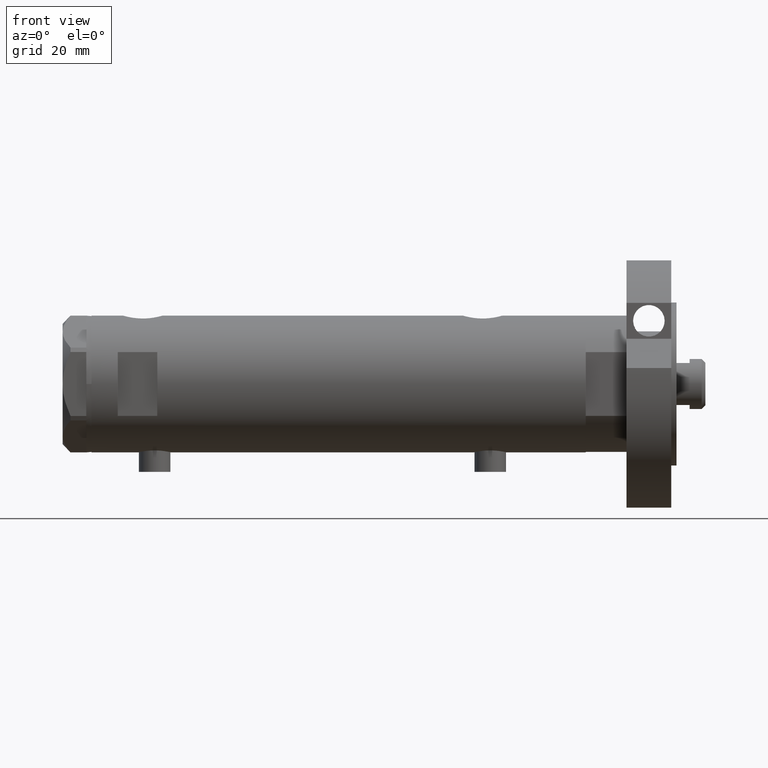
[diagram: clean part render]
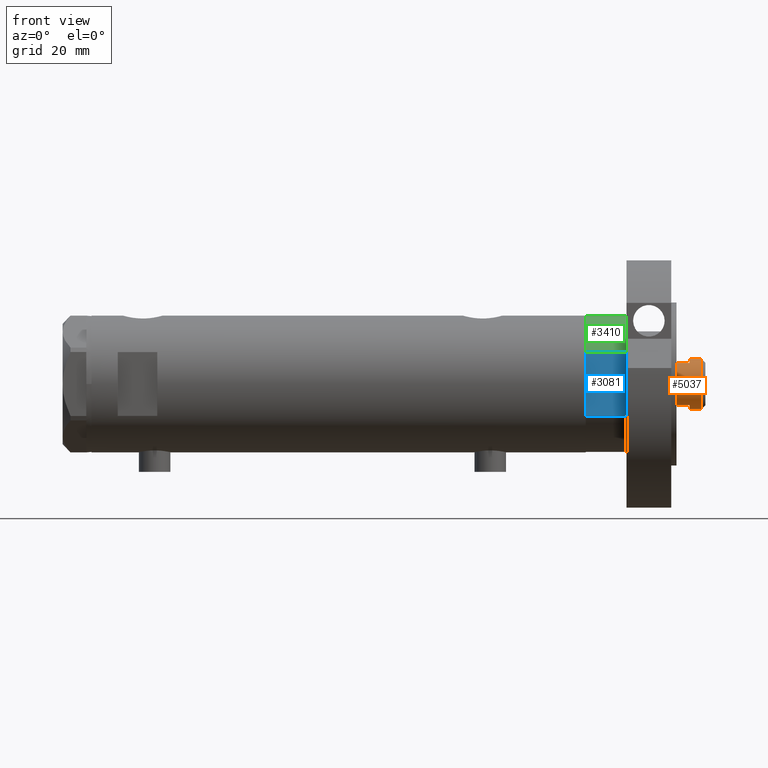
[diagram: same view with three faces highlighted in distinct colors, each labeled with its STEP entity id]
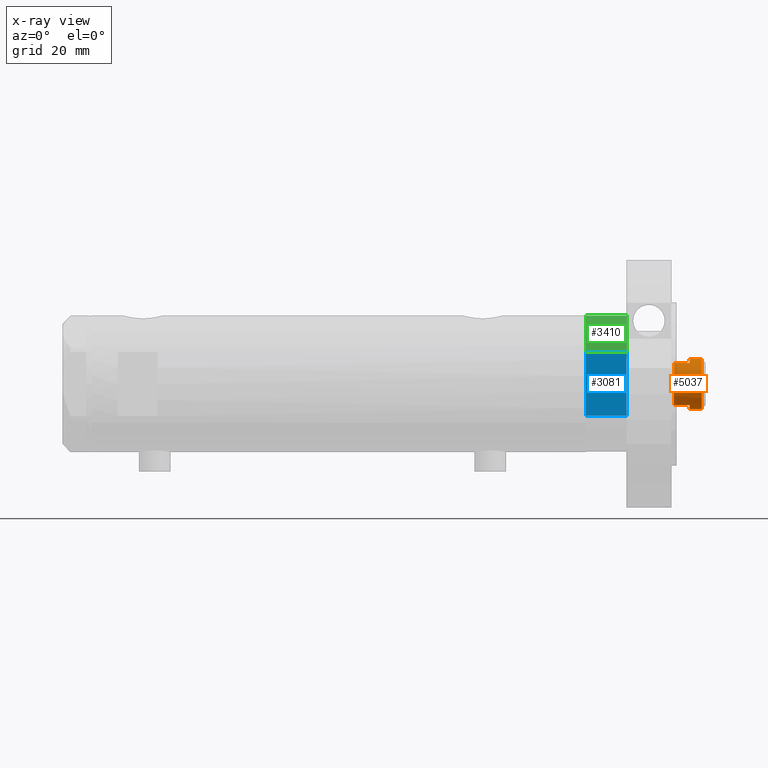
[diagram: x-ray of the same camera — body ghosted, the three highlighted faces saturated]
A machine part, front view with three faces highlighted in distinct colors.
The next image is the same camera in x-ray (body ghosted, the three faces saturated) — at least one of them is partly hidden behind the body in this view.
Their STEP definitions:

[orange] entity #5037 — the highlighted cylindrical surface (edge-blend (fillet) strip) has radius 9.5 mm, axis along (-1, -0, 0).
#10 = VERTEX_POINT ( 'NONE', #2836 ) ;
#54 = CARTESIAN_POINT ( 'NONE',  ( 0.000000000000000000, 0.000000000000000000, 203.5999999999999943 ) ) ;
#83 = EDGE_CURVE ( 'NONE', #1523, #4918, #5654, .T. ) ;
#104 = CARTESIAN_POINT ( 'NONE',  ( -9.500000000000001776, 0.000000000000000000, 203.5999999999999943 ) ) ;
#223 = CARTESIAN_POINT ( 'NONE',  ( 7.982950582334832568, -5.149999999999997691, 203.5999999999999943 ) ) ;
#264 = LINE ( 'NONE', #4741, #4183 ) ;
#287 = ORIENTED_EDGE ( 'NONE', *, *, #1619, .T. ) ;
#294 = LINE ( 'NONE', #2429, #3656 ) ;
#405 = ORIENTED_EDGE ( 'NONE', *, *, #785, .F. ) ;
#785 = EDGE_CURVE ( 'NONE', #2051, #5545, #264, .T. ) ;
#898 = VERTEX_POINT ( 'NONE', #4873 ) ;
#904 = EDGE_CURVE ( 'NONE', #5241, #898, #294, .T. ) ;
#985 = CARTESIAN_POINT ( 'NONE',  ( -9.500000000000000000, 0.000000000000000000, 203.5999999999999943 ) ) ;
#1128 = ORIENTED_EDGE ( 'NONE', *, *, #1393, .T. ) ;
#1142 = CARTESIAN_POINT ( 'NONE',  ( 9.500000000000001776, 1.163414459189985682E-15, 208.2000000000000171 ) ) ;
#1393 = EDGE_CURVE ( 'NONE', #5241, #5545, #3134, .T. ) ;
#1507 = ORIENTED_EDGE ( 'NONE', *, *, #1632, .T. ) ;
#1523 = VERTEX_POINT ( 'NONE', #985 ) ;
#1603 = CYLINDRICAL_SURFACE ( 'NONE', #4228, 9.500000000000001776 ) ;
#1619 = EDGE_CURVE ( 'NONE', #2051, #2816, #5961, .T. ) ;
#1632 = EDGE_CURVE ( 'NONE', #10, #898, #5758, .T. ) ;
#1635 = ORIENTED_EDGE ( 'NONE', *, *, #904, .F. ) ;
#1941 = CARTESIAN_POINT ( 'NONE',  ( 0.000000000000000000, 0.000000000000000000, 197.5999999999999943 ) ) ;
#1960 = DIRECTION ( 'NONE',  ( 0.000000000000000000, 0.000000000000000000, 1.000000000000000000 ) ) ;
#1973 = DIRECTION ( 'NONE',  ( 1.000000000000000000, 0.000000000000000000, 0.000000000000000000 ) ) ;
#2051 = VERTEX_POINT ( 'NONE', #1142 ) ;
#2085 = CARTESIAN_POINT ( 'NONE',  ( 9.500000000000000000, 1.163414459189985485E-15, 203.5999999999999943 ) ) ;
#2313 = AXIS2_PLACEMENT_3D ( 'NONE', #1941, #5376, #2960 ) ;
#2425 = VECTOR ( 'NONE', #3412, 1000.000000000000000 ) ;
#2429 = CARTESIAN_POINT ( 'NONE',  ( 7.982950582334832568, -5.149999999999997691, 203.5999999999999943 ) ) ;
#2482 = CARTESIAN_POINT ( 'NONE',  ( -9.500000000000001776, 0.000000000000000000, 208.2000000000000171 ) ) ;
#2513 = ORIENTED_EDGE ( 'NONE', *, *, #3110, .T. ) ;
#2816 = VERTEX_POINT ( 'NONE', #2482 ) ;
#2822 = CARTESIAN_POINT ( 'NONE',  ( 0.000000000000000000, 0.000000000000000000, 203.5999999999999943 ) ) ;
#2836 = CARTESIAN_POINT ( 'NONE',  ( -7.982950582334825462, -5.150000000000070521, 197.5999999999999943 ) ) ;
#2896 = DIRECTION ( 'NONE',  ( -0.000000000000000000, -0.000000000000000000, -1.000000000000000000 ) ) ;
#2936 = AXIS2_PLACEMENT_3D ( 'NONE', #6437, #1960, #3513 ) ;
#2960 = DIRECTION ( 'NONE',  ( 1.000000000000000000, 0.000000000000000000, 0.000000000000000000 ) ) ;
#3110 = EDGE_CURVE ( 'NONE', #4918, #10, #3808, .T. ) ;
#3134 = CIRCLE ( 'NONE', #3356, 9.500000000000000000 ) ;
#3356 = AXIS2_PLACEMENT_3D ( 'NONE', #2822, #5870, #1973 ) ;
#3369 = DIRECTION ( 'NONE',  ( 0.000000000000000000, 0.000000000000000000, -1.000000000000000000 ) ) ;
#3412 = DIRECTION ( 'NONE',  ( -0.000000000000000000, -0.000000000000000000, -1.000000000000000000 ) ) ;
#3513 = DIRECTION ( 'NONE',  ( 1.000000000000000000, 0.000000000000000000, 0.000000000000000000 ) ) ;
#3563 = ORIENTED_EDGE ( 'NONE', *, *, #83, .T. ) ;
#3593 = LINE ( 'NONE', #104, #6094 ) ;
#3656 = VECTOR ( 'NONE', #2896, 1000.000000000000000 ) ;
#3808 = LINE ( 'NONE', #5801, #2425 ) ;
#3927 = CARTESIAN_POINT ( 'NONE',  ( 0.000000000000000000, 0.000000000000000000, 208.2000000000000171 ) ) ;
#4114 = EDGE_CURVE ( 'NONE', #2816, #1523, #3593, .T. ) ;
#4183 = VECTOR ( 'NONE', #6276, 1000.000000000000000 ) ;
#4228 = AXIS2_PLACEMENT_3D ( 'NONE', #54, #5569, #5605 ) ;
#4741 = CARTESIAN_POINT ( 'NONE',  ( 9.500000000000001776, 1.163414459189985682E-15, 203.5999999999999943 ) ) ;
#4873 = CARTESIAN_POINT ( 'NONE',  ( 7.982950582334834344, -5.150000000000060751, 197.5999999999999943 ) ) ;
#4918 = VERTEX_POINT ( 'NONE', #5677 ) ;
#4929 = AXIS2_PLACEMENT_3D ( 'NONE', #3927, #3369, #6380 ) ;
#5037 = ADVANCED_FACE ( 'NONE', ( #6098 ), #1603, .T. ) ;
#5179 = ORIENTED_EDGE ( 'NONE', *, *, #4114, .T. ) ;
#5241 = VERTEX_POINT ( 'NONE', #223 ) ;
#5376 = DIRECTION ( 'NONE',  ( 0.000000000000000000, 0.000000000000000000, 1.000000000000000000 ) ) ;
#5545 = VERTEX_POINT ( 'NONE', #2085 ) ;
#5569 = DIRECTION ( 'NONE',  ( -0.000000000000000000, -0.000000000000000000, -1.000000000000000000 ) ) ;
#5605 = DIRECTION ( 'NONE',  ( -1.000000000000000000, 0.000000000000000000, 0.000000000000000000 ) ) ;
#5654 = CIRCLE ( 'NONE', #2936, 9.500000000000000000 ) ;
#5677 = CARTESIAN_POINT ( 'NONE',  ( -7.982950582334825462, -5.150000000000003020, 203.5999999999999943 ) ) ;
#5758 = CIRCLE ( 'NONE', #2313, 9.500000000000001776 ) ;
#5766 = EDGE_LOOP ( 'NONE', ( #405, #287, #5179, #3563, #2513, #1507, #1635, #1128 ) ) ;
#5801 = CARTESIAN_POINT ( 'NONE',  ( -7.982950582334829015, -5.150000000000001243, 203.5999999999999943 ) ) ;
#5870 = DIRECTION ( 'NONE',  ( 0.000000000000000000, 0.000000000000000000, 1.000000000000000000 ) ) ;
#5961 = CIRCLE ( 'NONE', #4929, 9.500000000000001776 ) ;
#6049 = DIRECTION ( 'NONE',  ( -0.000000000000000000, -0.000000000000000000, -1.000000000000000000 ) ) ;
#6094 = VECTOR ( 'NONE', #6049, 1000.000000000000000 ) ;
#6098 = FACE_OUTER_BOUND ( 'NONE', #5766, .T. ) ;
#6276 = DIRECTION ( 'NONE',  ( -0.000000000000000000, -0.000000000000000000, -1.000000000000000000 ) ) ;
#6380 = DIRECTION ( 'NONE',  ( 1.000000000000000000, 0.000000000000000000, 0.000000000000000000 ) ) ;
#6437 = CARTESIAN_POINT ( 'NONE',  ( 0.000000000000000000, 0.000000000000000000, 203.5999999999999943 ) ) ;

[blue] entity #3081 — the highlighted planar face has unit normal (-0, 1, 0).
#173 = ORIENTED_EDGE ( 'NONE', *, *, #5286, .T. ) ;
#222 = EDGE_LOOP ( 'NONE', ( #4294, #2478, #5468, #173 ) ) ;
#251 = DIRECTION ( 'NONE',  ( -0.000000000000000000, 1.000000000000000000, 0.000000000000000000 ) ) ;
#284 = FACE_OUTER_BOUND ( 'NONE', #222, .T. ) ;
#711 = CARTESIAN_POINT ( 'NONE',  ( -12.12435565298215145, -22.99999999999999645, 15.50000000000000000 ) ) ;
#717 = VERTEX_POINT ( 'NONE', #1138 ) ;
#736 = DIRECTION ( 'NONE',  ( 0.000000000000000000, -0.000000000000000000, 1.000000000000000000 ) ) ;
#1065 = VECTOR ( 'NONE', #6273, 1000.000000000000000 ) ;
#1138 = CARTESIAN_POINT ( 'NONE',  ( -12.12435565298215323, -22.99999999999999645, 15.50000000000000000 ) ) ;
#1303 = PLANE ( 'NONE',  #4521 ) ;
#1401 = CARTESIAN_POINT ( 'NONE',  ( -12.12435565298215501, -22.99999999999999645, 0.000000000000000000 ) ) ;
#1795 = VERTEX_POINT ( 'NONE', #4016 ) ;
#1976 = EDGE_CURVE ( 'NONE', #2040, #717, #3649, .T. ) ;
#2040 = VERTEX_POINT ( 'NONE', #2206 ) ;
#2187 = CARTESIAN_POINT ( 'NONE',  ( -12.12435565298215145, -22.99999999999999645, 0.000000000000000000 ) ) ;
#2206 = CARTESIAN_POINT ( 'NONE',  ( 12.12435565298215323, -22.99999999999999645, 15.50000000000000000 ) ) ;
#2337 = VECTOR ( 'NONE', #3870, 1000.000000000000000 ) ;
#2478 = ORIENTED_EDGE ( 'NONE', *, *, #3224, .F. ) ;
#2659 = CARTESIAN_POINT ( 'NONE',  ( -12.12435565298215145, -22.99999999999999645, 0.000000000000000000 ) ) ;
#2710 = VERTEX_POINT ( 'NONE', #1401 ) ;
#2752 = VECTOR ( 'NONE', #4668, 1000.000000000000000 ) ;
#3081 = ADVANCED_FACE ( 'NONE', ( #284 ), #1303, .F. ) ;
#3224 = EDGE_CURVE ( 'NONE', #2710, #717, #5435, .T. ) ;
#3649 = LINE ( 'NONE', #711, #4414 ) ;
#3870 = DIRECTION ( 'NONE',  ( -0.000000000000000000, -0.000000000000000000, 1.000000000000000000 ) ) ;
#4016 = CARTESIAN_POINT ( 'NONE',  ( 12.12435565298215323, -22.99999999999999645, 0.000000000000000000 ) ) ;
#4211 = DIRECTION ( 'NONE',  ( -1.000000000000000000, -0.000000000000000000, -0.000000000000000000 ) ) ;
#4259 = EDGE_CURVE ( 'NONE', #1795, #2710, #5152, .T. ) ;
#4275 = CARTESIAN_POINT ( 'NONE',  ( 12.12435565298215323, -22.99999999999999645, 0.000000000000000000 ) ) ;
#4294 = ORIENTED_EDGE ( 'NONE', *, *, #1976, .T. ) ;
#4414 = VECTOR ( 'NONE', #4211, 1000.000000000000000 ) ;
#4426 = CARTESIAN_POINT ( 'NONE',  ( -12.12435565298215145, -22.99999999999999645, 0.000000000000000000 ) ) ;
#4521 = AXIS2_PLACEMENT_3D ( 'NONE', #2187, #251, #736 ) ;
#4668 = DIRECTION ( 'NONE',  ( -1.000000000000000000, -0.000000000000000000, -0.000000000000000000 ) ) ;
#5152 = LINE ( 'NONE', #2659, #2752 ) ;
#5262 = LINE ( 'NONE', #4275, #1065 ) ;
#5286 = EDGE_CURVE ( 'NONE', #1795, #2040, #5262, .T. ) ;
#5435 = LINE ( 'NONE', #4426, #2337 ) ;
#5468 = ORIENTED_EDGE ( 'NONE', *, *, #4259, .F. ) ;
#6273 = DIRECTION ( 'NONE',  ( -0.000000000000000000, -0.000000000000000000, 1.000000000000000000 ) ) ;

[green] entity #3410 — the highlighted cylindrical surface (partial cylindrical patch) has radius 26 mm, axis along (-1, -0, 0).
#241 = FACE_OUTER_BOUND ( 'NONE', #529, .T. ) ;
#420 = AXIS2_PLACEMENT_3D ( 'NONE', #4822, #4221, #5210 ) ;
#529 = EDGE_LOOP ( 'NONE', ( #2600, #2862, #5281, #4391 ) ) ;
#638 = CARTESIAN_POINT ( 'NONE',  ( 0.000000000000000000, 0.000000000000000000, 15.50000000000000000 ) ) ;
#717 = VERTEX_POINT ( 'NONE', #1138 ) ;
#1138 = CARTESIAN_POINT ( 'NONE',  ( -12.12435565298215323, -22.99999999999999645, 15.50000000000000000 ) ) ;
#1206 = DIRECTION ( 'NONE',  ( 0.000000000000000000, 0.000000000000000000, 1.000000000000000000 ) ) ;
#1370 = DIRECTION ( 'NONE',  ( 1.000000000000000000, 0.000000000000000000, 0.000000000000000000 ) ) ;
#1391 = CIRCLE ( 'NONE', #3290, 26.00000000000000355 ) ;
#1401 = CARTESIAN_POINT ( 'NONE',  ( -12.12435565298215501, -22.99999999999999645, 0.000000000000000000 ) ) ;
#1439 = CARTESIAN_POINT ( 'NONE',  ( -26.00000000000000355, 0.000000000000000000, 15.50000000000000000 ) ) ;
#1665 = DIRECTION ( 'NONE',  ( 1.000000000000000000, 0.000000000000000000, 0.000000000000000000 ) ) ;
#1919 = CIRCLE ( 'NONE', #5574, 26.00000000000000355 ) ;
#1932 = CARTESIAN_POINT ( 'NONE',  ( 0.000000000000000000, 0.000000000000000000, 0.000000000000000000 ) ) ;
#1946 = VERTEX_POINT ( 'NONE', #2628 ) ;
#2232 = VECTOR ( 'NONE', #2577, 1000.000000000000000 ) ;
#2337 = VECTOR ( 'NONE', #3870, 1000.000000000000000 ) ;
#2577 = DIRECTION ( 'NONE',  ( -0.000000000000000000, -0.000000000000000000, -1.000000000000000000 ) ) ;
#2600 = ORIENTED_EDGE ( 'NONE', *, *, #5194, .F. ) ;
#2628 = CARTESIAN_POINT ( 'NONE',  ( -26.00000000000000355, 0.000000000000000000, 0.000000000000000000 ) ) ;
#2710 = VERTEX_POINT ( 'NONE', #1401 ) ;
#2862 = ORIENTED_EDGE ( 'NONE', *, *, #4447, .T. ) ;
#3224 = EDGE_CURVE ( 'NONE', #2710, #717, #5435, .T. ) ;
#3290 = AXIS2_PLACEMENT_3D ( 'NONE', #638, #1206, #1665 ) ;
#3410 = ADVANCED_FACE ( 'NONE', ( #241 ), #4292, .T. ) ;
#3870 = DIRECTION ( 'NONE',  ( -0.000000000000000000, -0.000000000000000000, 1.000000000000000000 ) ) ;
#4221 = DIRECTION ( 'NONE',  ( -0.000000000000000000, -0.000000000000000000, -1.000000000000000000 ) ) ;
#4292 = CYLINDRICAL_SURFACE ( 'NONE', #420, 26.00000000000000355 ) ;
#4391 = ORIENTED_EDGE ( 'NONE', *, *, #3224, .T. ) ;
#4426 = CARTESIAN_POINT ( 'NONE',  ( -12.12435565298215145, -22.99999999999999645, 0.000000000000000000 ) ) ;
#4447 = EDGE_CURVE ( 'NONE', #4689, #1946, #5521, .T. ) ;
#4552 = CARTESIAN_POINT ( 'NONE',  ( -26.00000000000000355, 0.000000000000000000, 15.50000000000000000 ) ) ;
#4689 = VERTEX_POINT ( 'NONE', #1439 ) ;
#4822 = CARTESIAN_POINT ( 'NONE',  ( 0.000000000000000000, 0.000000000000000000, 15.50000000000000000 ) ) ;
#5194 = EDGE_CURVE ( 'NONE', #4689, #717, #1391, .T. ) ;
#5210 = DIRECTION ( 'NONE',  ( -1.000000000000000000, 0.000000000000000000, 0.000000000000000000 ) ) ;
#5281 = ORIENTED_EDGE ( 'NONE', *, *, #5323, .T. ) ;
#5323 = EDGE_CURVE ( 'NONE', #1946, #2710, #1919, .T. ) ;
#5393 = DIRECTION ( 'NONE',  ( 0.000000000000000000, 0.000000000000000000, 1.000000000000000000 ) ) ;
#5435 = LINE ( 'NONE', #4426, #2337 ) ;
#5521 = LINE ( 'NONE', #4552, #2232 ) ;
#5574 = AXIS2_PLACEMENT_3D ( 'NONE', #1932, #5393, #1370 ) ;